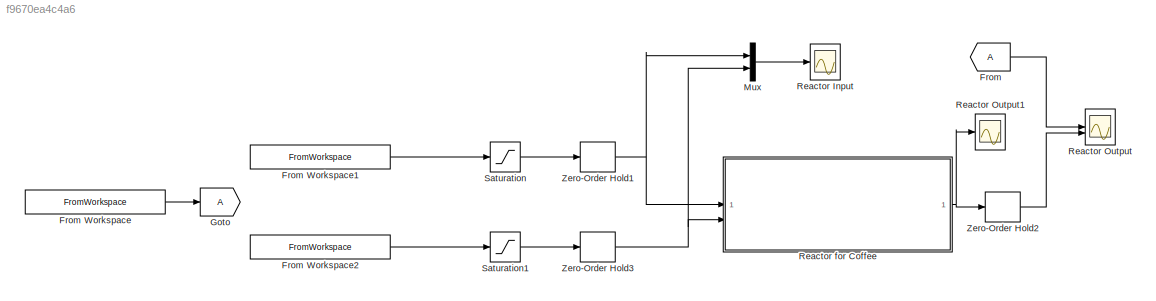
MODEL slx_f9670ea4c4a6
KIND model
CONFIG AbsTol = auto
CONFIG EnableMultiTasking = off
CONFIG FixedStep = simulationParameters.Tint
CONFIG MaxStep = auto
CONFIG MinStep = auto
CONFIG RelTol = 1e-3
CONFIG SampleTimeConstraint = Unconstrained
CONFIG SolverName = ode4
CONFIG StartTime = 0.0
CONFIG StopTime = simulationParameters.Tsim
BLOCK [From] From
BLOCK [FromWorkspace] From Workspace
  OutputAfterFinalValue = Holding final value
  VariableName = simulationParameters.y_target
BLOCK [FromWorkspace] From Workspace1
  OutputAfterFinalValue = Holding final value
  VariableName = Fin_1
BLOCK [FromWorkspace] From Workspace2
  OutputAfterFinalValue = Holding final value
  VariableName = Fin_2
BLOCK [Goto] Goto
BLOCK [Mux] Mux
  DisplayOption = bar
  Inputs = 2
BLOCK [Scope] Reactor Input
  Floating = off
  NumInputPorts = 1
  ScopeSpecificationString = Simulink.scopes.TimeScopeBlockCfg('CurrentConfiguration', extmgr.ConfigurationSet(extmgr.Configuration('Core','General UI',true),extmgr.Configuration('Core','Source UI',true),extmgr.Configuration('Sources','WiredSimulink',true,'DataLogging',true,'DataLoggingVariableName','reactorInput','DataLoggingSaveFormat','StructureWithTime'),extmgr.Configuration('Visuals','Time Domain',true,'SerializedDisplay...<+1530ch>
BLOCK [Scope] Reactor Output
  Floating = off
  NumInputPorts = 2
  ScopeSpecificationString = Simulink.scopes.TimeScopeBlockCfg('CurrentConfiguration', extmgr.ConfigurationSet(extmgr.Configuration('Core','General UI',true),extmgr.Configuration('Core','Source UI',true),extmgr.Configuration('Sources','WiredSimulink',true,'DataLogging',true,'DataLoggingVariableName','reactorOutput','DataLoggingSaveFormat','StructureWithTime'),extmgr.Configuration('Visuals','Time Domain',true,'SerializedDispla...<+1541ch>
BLOCK [Scope] Reactor Output1
  Floating = off
  NumInputPorts = 1
  ScopeSpecificationString = Simulink.scopes.TimeScopeBlockCfg('CurrentConfiguration', extmgr.ConfigurationSet(extmgr.Configuration('Core','General UI',true),extmgr.Configuration('Core','Source UI',true),extmgr.Configuration('Sources','WiredSimulink',true,'DataLogging',true,'DataLoggingVariableName','linear_continuous_out','DataLoggingSaveFormat','StructureWithTime'),extmgr.Configuration('Visuals','Time Domain',true,'Serializ...<+1621ch>
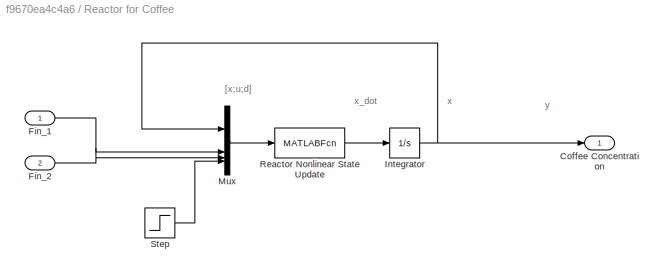
BLOCK [SubSystem] Reactor for Coffee
BLOCK [Outport] Reactor for Coffee/Coffee Concentration
BLOCK [Inport] Reactor for Coffee/Fin_1
BLOCK [Inport] Reactor for Coffee/Fin_2
  Port = 2
BLOCK [Integrator] Reactor for Coffee/Integrator
  InitialCondition = simulationParameters.Reactor_parameters.x_0
BLOCK [Mux] Reactor for Coffee/Mux
  DisplayOption = bar
BLOCK [MATLABFcn] Reactor for Coffee/Reactor Nonlinear State Update
  MATLABFcn = ReactorModel_StateUpdate(u(1),u(2:3),u(4),simulationParameters.Reactor_parameters,flagLinear)
  OutputDimensions = simulationParameters.Reactor_parameters.n
BLOCK [Step] Reactor for Coffee/Step
  After = simulationParameters.Reactor_parameters.Adist
  SampleTime = 0
  Time = simulationParameters.Reactor_parameters.Tdist
BLOCK [Saturate] Saturation
  LowerLimit = simulationParameters.Fin1_min
  UpperLimit = simulationParameters.Fin1_max
BLOCK [Saturate] Saturation1
  LowerLimit = simulationParameters.Fin2_min
  UpperLimit = simulationParameters.Fin2_max
BLOCK [ZeroOrderHold] Zero-Order Hold1
  SampleTime = simulationParameters.Ts
BLOCK [ZeroOrderHold] Zero-Order Hold2
  SampleTime = simulationParameters.Ts
BLOCK [ZeroOrderHold] Zero-Order Hold3
  SampleTime = simulationParameters.Ts
ANNOTATION Reactor for Coffee: [x;u;d]
ANNOTATION Reactor for Coffee: x
ANNOTATION Reactor for Coffee: x_dot
ANNOTATION Reactor for Coffee: y
LINE From Workspace1:1 -> Saturation:1
LINE From Workspace2:1 -> Saturation1:1
LINE From Workspace:1 -> Goto:1
LINE From:1 -> Reactor Output:1
LINE Mux:1 -> Reactor Input:1
LINE Reactor for Coffee/Fin_1:1 -> Reactor for Coffee/Mux:2
LINE Reactor for Coffee/Fin_2:1 -> Reactor for Coffee/Mux:3
NET Reactor for Coffee/Integrator:1 -> Reactor for Coffee/Coffee Concentration:1, Reactor for Coffee/Mux:1
LINE Reactor for Coffee/Mux:1 -> Reactor for Coffee/Reactor Nonlinear State Update:1
LINE Reactor for Coffee/Reactor Nonlinear State Update:1 -> Reactor for Coffee/Integrator:1
LINE Reactor for Coffee/Step:1 -> Reactor for Coffee/Mux:4
NET Reactor for Coffee:1 -> Reactor Output1:1, Zero-Order Hold2:1
LINE Saturation1:1 -> Zero-Order Hold3:1
LINE Saturation:1 -> Zero-Order Hold1:1
NET Zero-Order Hold1:1 -> Mux:1, Reactor for Coffee:1
LINE Zero-Order Hold2:1 -> Reactor Output:2
NET Zero-Order Hold3:1 -> Mux:2, Reactor for Coffee:2
note: NET lines group one-source signal fan-out (src -> all destinations, sorted); 1:1 wires keep LINE
